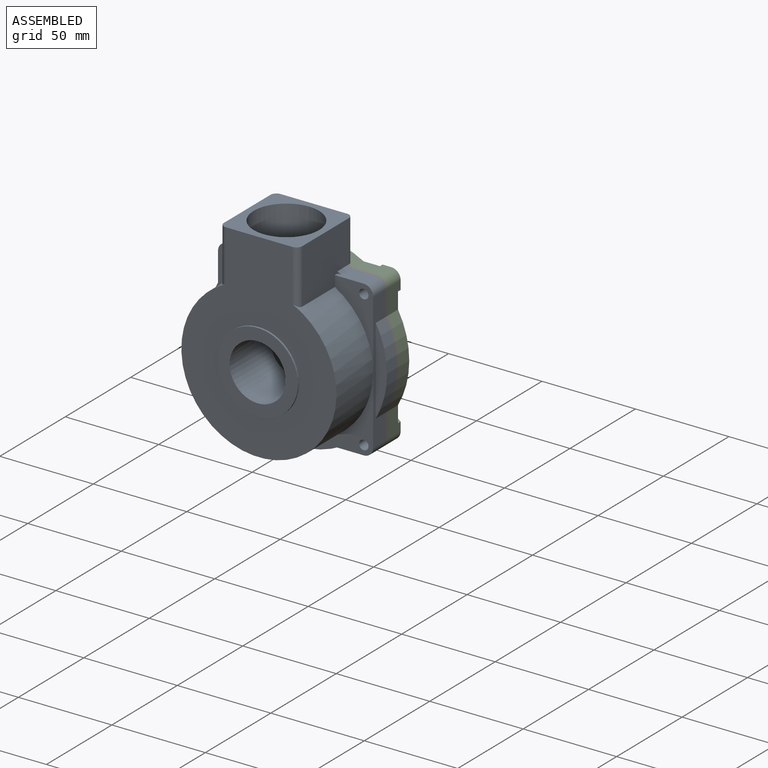
[diagram: assembled view]
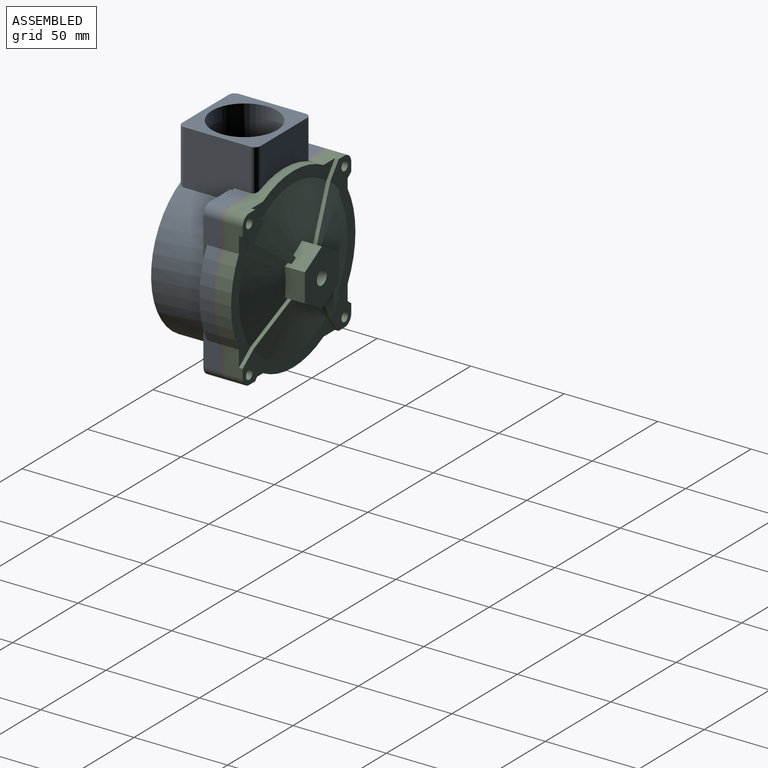
[diagram: assembled view, second angle]
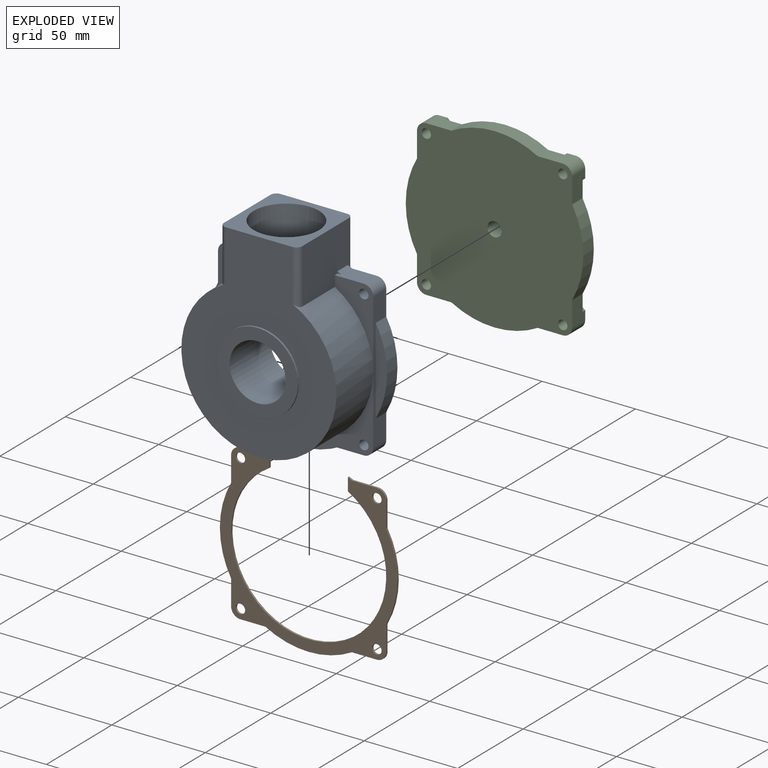
[diagram: exploded view]
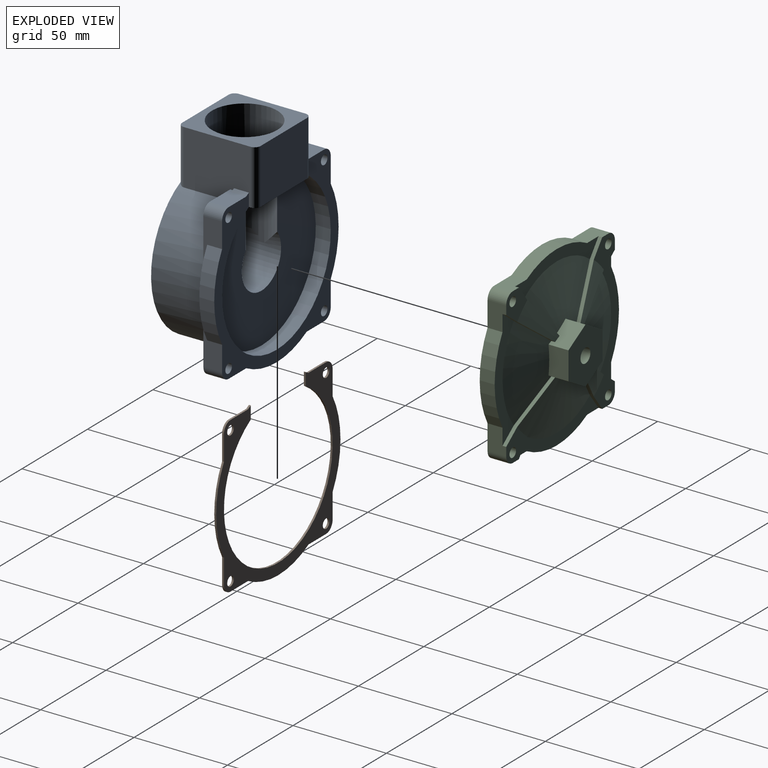
[diagram: exploded view, second angle]
ASSEMBLY  parts=3 mates=2
PART A: 55 faces, bbox 95x43x112.5 mm
  f0: plane 4.04x2mm, normal (0,0,1), area 5.8mm2, adj f16,f19,f42,f50
  f1: plane 41.5x20.5mm, normal (0,-1,0), area 305.8mm2, adj f4,f9,f28,f30,f33,f51
  f2: plane 41.5x20.5mm, normal (0,-1,0), area 305.8mm2, adj f4,f14,f25,f26,f32,f52
  f3: cylinder r=15mm len=31mm, axis (0,1,0), area 2131.3mm2, adj f13,f42,f54
  f4: cylinder r=41.5mm len=83mm, axis (0,1,0), area 6073mm2, adj f1,f2,f39,f40,f41,f48,f49,f51
  f5: plane 2.11x1.11mm, normal (0,-1,0), area 1.2mm2, adj f7,f14,f52
  f6: plane 2.11x1.11mm, normal (0,-1,0), area 1.2mm2, adj f8,f9,f51
  f7: cylinder r=47.5mm len=8mm, axis (0,-1,0), area 19mm2, adj f5,f11,f14,f52
  f8: cylinder r=47.5mm len=8mm, axis (0,-1,0), area 19mm2, adj f6,f9,f11,f51
  f9: plane 15.5x10mm, normal (0,0,1), area 138.1mm2, adj f1,f6,f8,f11,f28,f51
  f10: plane 4.04x2mm, normal (0,0,1), area 5.8mm2, adj f15,f19,f42,f50
  f11: plane 95x90.11mm, normal (0,1,0), area 1867.4mm2, adj f7,f8,f9,f12,f14,f21,f22,f23
  f12: cylinder r=41.49mm len=82.98mm, axis (0,-1,0), area 1733.2mm2, adj f11,f13,f51,f52
  f13: plane 82.98x81.21mm, normal (0,1,0), area 4015.3mm2, adj f3,f12,f38,f42,f47,f50,f51,f52
  f14: plane 15.5x10mm, normal (0,0,1), area 138.1mm2, adj f2,f5,f7,f11,f26,f52
  f15: plane 3.22x2.77mm, normal (0,-1,0), area 7.4mm2, adj f10,f17,f42,f50
  f16: plane 3.22x2.77mm, normal (0,-1,0), area 7.4mm2, adj f0,f17,f42,f50
  f17: cylinder r=41.5mm len=35mm, axis (0,1,0), area 172.1mm2, adj f15,f16,f42,f50
  f18: plane 46.22x6mm, normal (0,-1,0), area 187.3mm2, adj f29,f30
  f19: plane 30.02x7.78mm, normal (0,-1,0), area 170.3mm2, adj f0,f10,f27,f38,f42,f50
  f20: plane 46.22x6mm, normal (0,-1,0), area 187.3mm2, adj f24,f25
  f21: plane 73x10mm, normal (0,0,-1), area 360.3mm2, adj f11,f22,f23,f34,f37,f39,f40
  f22: cylinder r=47.5mm len=46.22mm, axis (0,-1,0), area 386.1mm2, adj f11,f21,f37
  f23: cylinder r=5mm len=10mm, axis (0,-1,0), area 78.5mm2, adj f11,f21,f25,f40
  f24: cylinder r=47.5mm len=46.22mm, axis (0,-1,0), area 386.1mm2, adj f11,f20,f25
  f25: plane 73x10mm, normal (1,0,0), area 360.3mm2, adj f2,f11,f20,f23,f24,f26,f40
  f26: cylinder r=5mm len=10mm, axis (0,-1,0), area 78.5mm2, adj f2,f11,f14,f25
  f27: cylinder r=47.5mm len=30.02mm, axis (0,-1,0), area 179.8mm2, adj f19,f36,f50
  f28: cylinder r=5mm len=10mm, axis (0,-1,0), area 78.5mm2, adj f1,f9,f11,f30
  f29: cylinder r=47.5mm len=46.22mm, axis (0,-1,0), area 386.1mm2, adj f11,f18,f30
  f30: plane 73x10mm, normal (-1,0,0), area 360.3mm2, adj f1,f11,f18,f28,f29,f34,f39
  f31: cylinder r=2.5mm len=10mm, axis (0,-1,0), area 157.1mm2, adj f11,f39
  f32: cylinder r=2.5mm len=10mm, axis (0,-1,0), area 157.1mm2, adj f2,f11
  f33: cylinder r=2.5mm len=10mm, axis (0,-1,0), area 157.1mm2, adj f1,f11
  f34: cylinder r=5mm len=10mm, axis (0,-1,0), area 78.5mm2, adj f11,f21,f30,f39
  f35: cylinder r=2.5mm len=10mm, axis (0,-1,0), area 157.1mm2, adj f11,f40
  f36: plane 8.31x6.22mm, normal (0,1,0), area 50mm2, adj f27,f38,f50
  f37: plane 46.22x6mm, normal (0,-1,0), area 187.3mm2, adj f21,f22
  f38: cylinder r=41.49mm len=30.02mm, axis (0,-1,0), area 180.4mm2, adj f13,f19,f36,f50
  f39: plane 41.5x41.5mm, normal (0,-1,0), area 344.6mm2, adj f4,f21,f30,f31,f34
  f40: plane 41.5x41.5mm, normal (0,-1,0), area 344.6mm2, adj f4,f21,f23,f25,f35
  f41: plane 106.5x83mm, normal (0,-1,0), area 4843mm2, adj f4,f43,f48,f49,f53
  f42: cylinder r=15mm len=41.5mm, axis (0,0,-1), area 2113.6mm2, adj f0,f3,f10,f13,f15,f16,f17,f19
  f43: plane 42x42mm, normal (0,0,1), area 793.2mm2, adj f41,f44,f45,f46,f48,f49,f50,f51
  f44: cylinder r=3.17mm len=29.4mm, axis (0,0,-1), area 146.6mm2, adj f43,f45,f47,f51
  f45: plane 35.65x29.4mm, normal (0,1,0), area 1048.1mm2, adj f43,f44,f46,f47
  f46: cylinder r=3.17mm len=29.4mm, axis (0,0,-1), area 146.6mm2, adj f43,f45,f47,f52
  f47: plane 42x12mm, normal (0,0,-1), area 319.1mm2, adj f13,f44,f45,f46,f50,f51,f52
  f48: cylinder r=3.17mm len=29.21mm, axis (0,0,-1), area 142.5mm2, adj f4,f41,f43,f51
  f49: cylinder r=3.17mm len=29.21mm, axis (0,0,-1), area 142.5mm2, adj f4,f41,f43,f52
  f50: cylinder r=17.5mm len=35mm, axis (0,0,-1), area 2783mm2, adj f0,f10,f13,f15,f16,f17,f19,f27
  f51: plane 35.65x29.4mm, normal (-1,0,0), area 976.9mm2, adj f1,f4,f6,f8,f9,f11,f12,f13
  f52: plane 35.65x29.4mm, normal (1,0,0), area 976.9mm2, adj f2,f4,f5,f7,f11,f12,f13,f14
  f53: cylinder r=21.5mm len=43mm, axis (0,-1,0), area 135.1mm2, adj f41,f54
  f54: plane 43x43mm, normal (0,-1,0), area 745.3mm2, adj f3,f53
PART B: 26 faces, bbox 95x1x90.1 mm
  f0: plane 6.82x1mm, normal (-1,0,0), area 6.8mm2, adj f1,f23,f24,f25
  f1: cylinder r=47.5mm len=2.11mm, axis (0,-1,0), area 2.4mm2, adj f0,f2,f24,f25
  f2: plane 13.39x1mm, normal (0,0,1), area 13.4mm2, adj f1,f3,f24,f25
  f3: cylinder r=5mm len=5mm, axis (0,-1,0), area 7.9mm2, adj f2,f4,f24,f25
  f4: plane 13.39x1mm, normal (1,0,0), area 13.4mm2, adj f3,f5,f24,f25
  f5: cylinder r=47.5mm len=46.22mm, axis (0,-1,0), area 48.3mm2, adj f4,f6,f24,f25
  f6: plane 13.39x1mm, normal (1,0,0), area 13.4mm2, adj f5,f7,f24,f25
  f7: cylinder r=5mm len=5mm, axis (0,-1,0), area 7.9mm2, adj f6,f8,f24,f25
  f8: plane 13.39x1mm, normal (0,0,-1), area 13.4mm2, adj f7,f9,f24,f25
  f9: cylinder r=47.5mm len=46.22mm, axis (0,-1,0), area 48.3mm2, adj f8,f10,f24,f25
  f10: plane 13.39x1mm, normal (0,0,-1), area 13.4mm2, adj f9,f11,f24,f25
  f11: cylinder r=5mm len=5mm, axis (0,-1,0), area 7.9mm2, adj f10,f12,f24,f25
  f12: plane 13.39x1mm, normal (-1,0,0), area 13.4mm2, adj f11,f13,f24,f25
  f13: cylinder r=47.5mm len=46.22mm, axis (0,-1,0), area 48.3mm2, adj f12,f14,f24,f25
  f14: plane 13.39x1mm, normal (-1,0,0), area 13.4mm2, adj f13,f15,f24,f25
  f15: cylinder r=5mm len=5mm, axis (0,-1,0), area 7.9mm2, adj f14,f16,f24,f25
  f16: plane 13.39x1mm, normal (0,0,1), area 13.4mm2, adj f15,f17,f24,f25
  f17: cylinder r=47.5mm len=2.11mm, axis (0,-1,0), area 2.4mm2, adj f16,f18,f24,f25
  f18: plane 6.82x1mm, normal (1,0,0), area 6.8mm2, adj f17,f23,f24,f25
  f19: cylinder r=2.5mm len=5mm, axis (0,-1,0), area 15.7mm2, adj f24,f25
  f20: cylinder r=2.5mm len=5mm, axis (0,-1,0), area 15.7mm2, adj f24,f25
  f21: cylinder r=2.5mm len=5mm, axis (0,-1,0), area 15.7mm2, adj f24,f25
  f22: cylinder r=2.5mm len=5mm, axis (0,-1,0), area 15.7mm2, adj f24,f25
  f23: cylinder r=41.49mm len=82.98mm, axis (0,-1,0), area 216.7mm2, adj f0,f18,f24,f25
  f24: plane 95x90.11mm, normal (0,1,0), area 1867.4mm2, adj f0,f1,f2,f3,f4,f5,f6,f7
  f25: plane 95x90.11mm, normal (0,-1,0), area 1867.4mm2, adj f0,f1,f2,f3,f4,f5,f6,f7
PART C: 53 faces, bbox 95.3x23.6x95.3 mm
  f0: plane 63.69x14.58mm, normal (0,1,0), area 381.7mm2, adj f9,f22,f23,f24,f38,f49
  f1: cone r=41.5mm half-angle=80deg, axis (0,-1,0), area 1022.9mm2, adj f2,f3,f5,f45,f50
  f2: plane 13.27x10.91mm, normal (0.5,0,-0.87), area 148.9mm2, adj f1,f5,f9,f34,f35,f49,f50,f51
  f3: plane 63.69x14.58mm, normal (0,1,0), area 381.7mm2, adj f1,f12,f26,f30,f45,f50
  f4: cone r=41.5mm half-angle=80deg, axis (0,-1,0), area 1017.4mm2, adj f5,f7,f8,f33,f41,f46
  f5: plane 13.27x10.91mm, normal (-0.5,0,-0.87), area 148.9mm2, adj f1,f2,f4,f33,f35,f45,f46,f47
  f6: cone r=41.5mm half-angle=80deg, axis (0,-1,0), area 1022.9mm2, adj f8,f10,f11,f37,f42
  f7: plane 63.69x14.58mm, normal (0,1,0), area 381.7mm2, adj f4,f14,f15,f16,f41,f46
  f8: plane 13.27x10.91mm, normal (-0.5,0,0.87), area 148.9mm2, adj f4,f6,f11,f33,f35,f41,f42,f43
  f9: cone r=41.5mm half-angle=80deg, axis (0,-1,0), area 1017.4mm2, adj f0,f2,f11,f34,f38,f49
  f10: plane 63.69x14.58mm, normal (0,1,0), area 381.7mm2, adj f6,f18,f19,f20,f37,f42
  f11: plane 13.27x10.91mm, normal (0.5,0,0.87), area 148.9mm2, adj f6,f8,f9,f34,f35,f37,f38,f39
  f12: plane 13.39x10mm, normal (0,0,-1), area 116.4mm2, adj f3,f13,f30,f32,f45,f48
  f13: cylinder r=5mm len=10mm, axis (0,-1,0), area 78.5mm2, adj f12,f14,f32,f48
  f14: plane 13.39x10mm, normal (-1,0,0), area 116.4mm2, adj f7,f13,f15,f32,f46,f48
  f15: cylinder r=47.5mm len=46.22mm, axis (0,-1,0), area 386.1mm2, adj f7,f14,f16,f32
  f16: plane 13.39x10mm, normal (-1,0,0), area 116.4mm2, adj f7,f15,f17,f32,f41,f44
  f17: cylinder r=5mm len=10mm, axis (0,-1,0), area 78.5mm2, adj f16,f18,f32,f44
  f18: plane 13.39x10mm, normal (0,0,1), area 116.4mm2, adj f10,f17,f19,f32,f42,f44
  f19: cylinder r=47.5mm len=46.22mm, axis (0,-1,0), area 386.1mm2, adj f10,f18,f20,f32
  f20: plane 13.39x10mm, normal (0,0,1), area 116.4mm2, adj f10,f19,f21,f32,f37,f40
  f21: cylinder r=5mm len=10mm, axis (0,-1,0), area 78.5mm2, adj f20,f22,f32,f40
  f22: plane 13.39x10mm, normal (1,0,0), area 116.4mm2, adj f0,f21,f23,f32,f38,f40
  f23: cylinder r=47.5mm len=46.22mm, axis (0,-1,0), area 386.1mm2, adj f0,f22,f24,f32
  f24: plane 13.39x10mm, normal (1,0,0), area 116.4mm2, adj f0,f23,f25,f32,f49,f52
  f25: cylinder r=5mm len=10mm, axis (0,-1,0), area 78.5mm2, adj f24,f26,f32,f52
  f26: plane 13.39x10mm, normal (0,0,-1), area 116.4mm2, adj f3,f25,f30,f32,f50,f52
  f27: cylinder r=2.5mm len=10mm, axis (0,-1,0), area 157.1mm2, adj f32,f48
  f28: cylinder r=2.5mm len=10mm, axis (0,-1,0), area 157.1mm2, adj f32,f40
  f29: cylinder r=2.5mm len=10mm, axis (0,-1,0), area 157.1mm2, adj f32,f44
  f30: cylinder r=47.5mm len=46.22mm, axis (0,-1,0), area 386.1mm2, adj f3,f12,f26,f32
  f31: cylinder r=2.5mm len=10mm, axis (0,-1,0), area 157.1mm2, adj f32,f52
  f32: plane 95x95mm, normal (0,-1,0), area 7492.7mm2, adj f12,f13,f14,f15,f16,f17,f18,f19
  f33: plane 15.01x10.65mm, normal (-1,0,0), area 156.3mm2, adj f4,f5,f8,f35
  f34: plane 15.01x10.65mm, normal (1,0,0), area 156.3mm2, adj f2,f9,f11,f35
  f35: plane 30.02x26mm, normal (0,1,0), area 539.8mm2, adj f2,f5,f8,f11,f33,f34,f36
  f36: cylinder r=3.81mm len=23.32mm, axis (0,1,0), area 558.2mm2, adj f32,f35
  f37: plane 31.1x23.86mm, normal (-0.79,0,0.61), area 79.3mm2, adj f6,f10,f11,f20,f39,f40
  f38: plane 30.34x23.28mm, normal (0.61,0,-0.79), area 77.3mm2, adj f0,f9,f11,f22,f39,f40
  f39: cone r=11.17mm half-angle=80deg, axis (0,-1,0), area 206.3mm2, adj f11,f37,f38,f40
  f40: plane 16.13x16.13mm, normal (0,1,0), area 148.4mm2, adj f20,f21,f22,f28,f37,f38,f39
  f41: plane 30.34x23.28mm, normal (-0.61,0,-0.79), area 77.3mm2, adj f4,f7,f8,f16,f43,f44
  f42: plane 31.1x23.86mm, normal (0.79,0,0.61), area 79.3mm2, adj f6,f8,f10,f18,f43,f44
  f43: cone r=11.17mm half-angle=80deg, axis (0,-1,0), area 206.3mm2, adj f8,f41,f42,f44
  f44: plane 16.13x16.13mm, normal (0,1,0), area 148.4mm2, adj f16,f17,f18,f29,f41,f42,f43
  f45: plane 31.1x23.86mm, normal (0.79,0,-0.61), area 79.3mm2, adj f1,f3,f5,f12,f47,f48
  f46: plane 30.34x23.28mm, normal (-0.61,0,0.79), area 77.3mm2, adj f4,f5,f7,f14,f47,f48
  f47: cone r=11.17mm half-angle=80deg, axis (0,-1,0), area 206.3mm2, adj f5,f45,f46,f48
  f48: plane 16.13x16.13mm, normal (0,1,0), area 148.4mm2, adj f12,f13,f14,f27,f45,f46,f47
  f49: plane 30.34x23.28mm, normal (0.61,0,0.79), area 77.3mm2, adj f0,f2,f9,f24,f51,f52
  f50: plane 31.1x23.86mm, normal (-0.79,0,-0.61), area 79.3mm2, adj f1,f2,f3,f26,f51,f52
  f51: cone r=11.17mm half-angle=80deg, axis (0,-1,0), area 206.3mm2, adj f2,f49,f50,f52
  f52: plane 16.13x16.13mm, normal (0,1,0), area 148.4mm2, adj f24,f25,f26,f31,f49,f50,f51
PLACE A t=(-69.81,-50.73,-24.15)mm
PLACE B t=(-69.81,-50.73,-24.15)mm
PLACE C t=(-69.81,-49.73,-24.15)mm
MATE fastened B.f23 <-> A.f4  axis (0,-1,0) through (-69.81,-42.73,-24.15)mm
MATE fastened B.f23 <-> C.f36  axis (0,1,0) through (-69.81,-41.73,-24.15)mm
